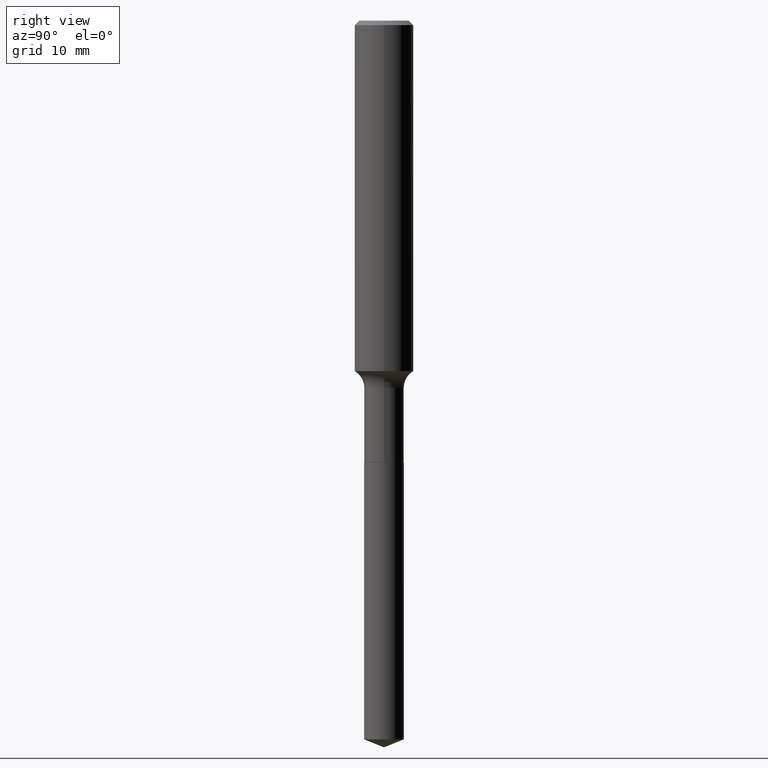
[diagram: clean part render]
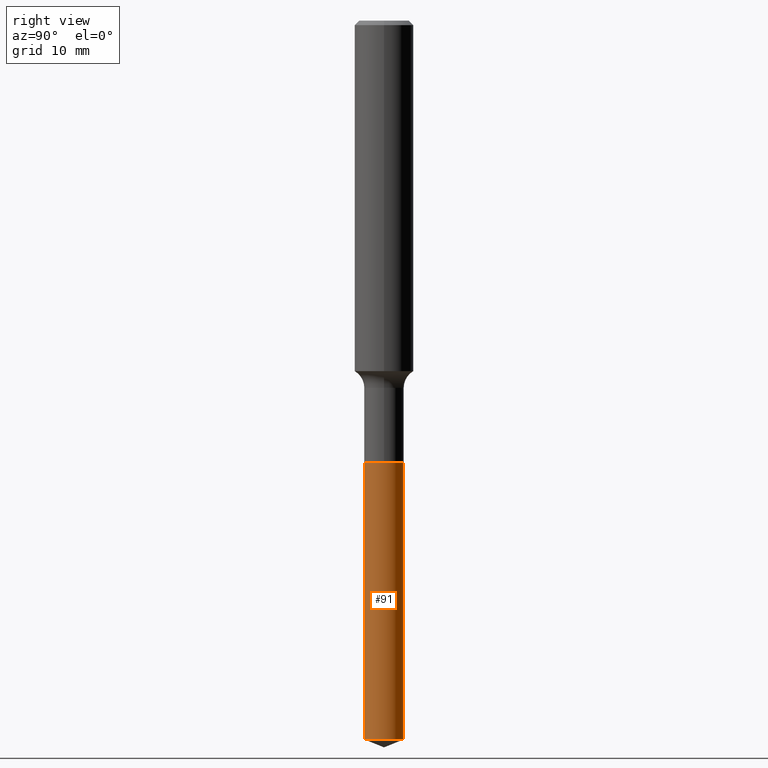
[diagram: same view with one face highlighted and labeled with its STEP entity id]
A machine part, right view. The second image highlights one B-rep face of the part: STEP entity #91.
In plain terms, the highlighted cylindrical surface (edge-blend (fillet) strip) has radius 2.0193 mm, axis along (-0, 0, 1).
Its self-contained STEP definition (entity closure, byte-faithful):
#40 = DIRECTION ( 'NONE',  ( -6.982962677686265922E-15, -1.000000000000000000, 3.436286784483350005E-15 ) ) ;
#41 = ORIENTED_EDGE ( 'NONE', *, *, #441, .F. ) ;
#42 = VERTEX_POINT ( 'NONE', #488 ) ;
#51 = CARTESIAN_POINT ( 'NONE',  ( 5.648814749293502595E-16, 0.07949999999999381173, -1.771300000000000097 ) ) ;
#53 = CARTESIAN_POINT ( 'NONE',  ( -5.551455328760147649E-16, -0.07950000000000617684, -1.771299999999999430 ) ) ;
#91 = ADVANCED_FACE ( 'NONE', ( #140 ), #364, .T. ) ;
#101 = CARTESIAN_POINT ( 'NONE',  ( -5.551455328760147649E-16, -0.07950000000000617684, -1.771299999999999430 ) ) ;
#105 = DIRECTION ( 'NONE',  ( -2.445355828329575810E-29, 3.491643129562608875E-15, 1.000000000000000000 ) ) ;
#127 = AXIS2_PLACEMENT_3D ( 'NONE', #399, #330, #443 ) ;
#137 = VERTEX_POINT ( 'NONE', #302 ) ;
#140 = FACE_OUTER_BOUND ( 'NONE', #313, .T. ) ;
#164 = EDGE_CURVE ( 'NONE', #42, #137, #292, .T. ) ;
#168 = VECTOR ( 'NONE', #105, 39.37007874015748143 ) ;
#182 = CARTESIAN_POINT ( 'NONE',  ( 5.648814749293228466E-16, 0.07949999999999381173, -1.771300000000000097 ) ) ;
#194 = VERTEX_POINT ( 'NONE', #51 ) ;
#235 = CARTESIAN_POINT ( 'NONE',  ( 4.331658896395732410E-29, -6.184460895492863090E-15, -1.771299999999999653 ) ) ;
#250 = EDGE_CURVE ( 'NONE', #42, #418, #392, .T. ) ;
#252 = AXIS2_PLACEMENT_3D ( 'NONE', #235, #382, #40 ) ;
#264 = CIRCLE ( 'NONE', #252, 0.07950000000000000122 ) ;
#292 = CIRCLE ( 'NONE', #127, 0.07950000000000000122 ) ;
#302 = CARTESIAN_POINT ( 'NONE',  ( 5.648814749293498651E-16, 0.07949999999998992595, -2.880879915046106188 ) ) ;
#313 = EDGE_LOOP ( 'NONE', ( #420, #385, #41, #481 ) ) ;
#325 = AXIS2_PLACEMENT_3D ( 'NONE', #432, #390, #479 ) ;
#330 = DIRECTION ( 'NONE',  ( -2.445355828329575810E-29, 3.491643129562608875E-15, 1.000000000000000000 ) ) ;
#345 = EDGE_CURVE ( 'NONE', #137, #194, #444, .T. ) ;
#362 = DIRECTION ( 'NONE',  ( -2.445355828329575810E-29, 3.491643129562608875E-15, 1.000000000000000000 ) ) ;
#364 = CYLINDRICAL_SURFACE ( 'NONE', #325, 0.07950000000000000122 ) ;
#382 = DIRECTION ( 'NONE',  ( -2.445355828329575810E-29, 3.491643129562608875E-15, 1.000000000000000000 ) ) ;
#385 = ORIENTED_EDGE ( 'NONE', *, *, #345, .T. ) ;
#390 = DIRECTION ( 'NONE',  ( -2.445355828329575810E-29, 3.491643129562608875E-15, 1.000000000000000000 ) ) ;
#392 = LINE ( 'NONE', #53, #465 ) ;
#399 = CARTESIAN_POINT ( 'NONE',  ( 7.044976608651161827E-29, -1.005871798256426244E-14, -2.880879915046105744 ) ) ;
#418 = VERTEX_POINT ( 'NONE', #101 ) ;
#420 = ORIENTED_EDGE ( 'NONE', *, *, #164, .T. ) ;
#432 = CARTESIAN_POINT ( 'NONE',  ( 4.331658896395732410E-29, -6.184460895492863090E-15, -1.771299999999999653 ) ) ;
#441 = EDGE_CURVE ( 'NONE', #418, #194, #264, .T. ) ;
#443 = DIRECTION ( 'NONE',  ( -6.982962677686265922E-15, -1.000000000000000000, 6.872573568966700010E-15 ) ) ;
#444 = LINE ( 'NONE', #182, #168 ) ;
#465 = VECTOR ( 'NONE', #362, 39.37007874015748143 ) ;
#479 = DIRECTION ( 'NONE',  ( -6.982962677686265922E-15, -1.000000000000000000, 3.436286784483350005E-15 ) ) ;
#481 = ORIENTED_EDGE ( 'NONE', *, *, #250, .F. ) ;
#488 = CARTESIAN_POINT ( 'NONE',  ( -5.551455328759876478E-16, -0.07950000000001004874, -2.880879915046105744 ) ) ;